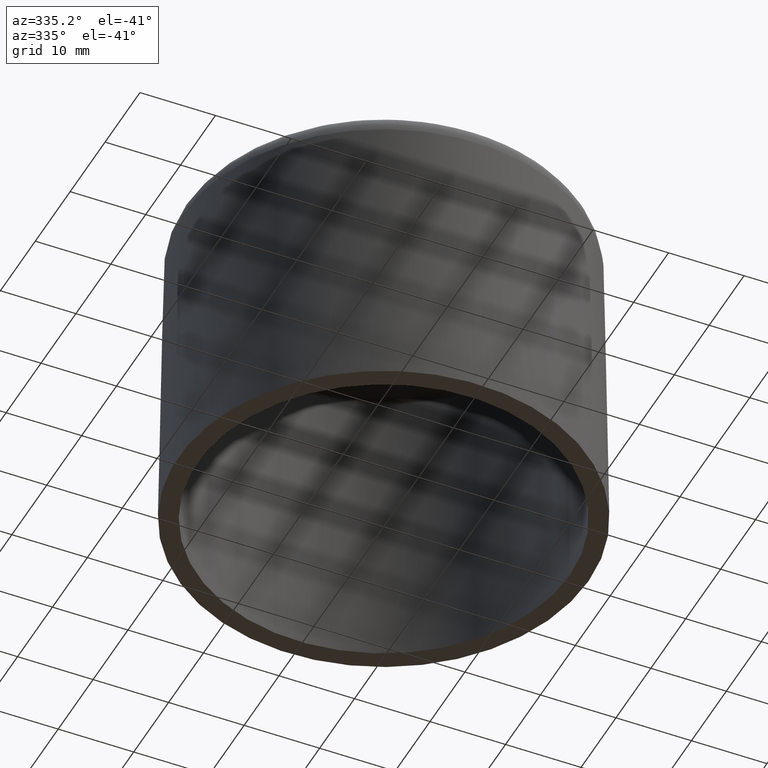
[diagram: clean part render]
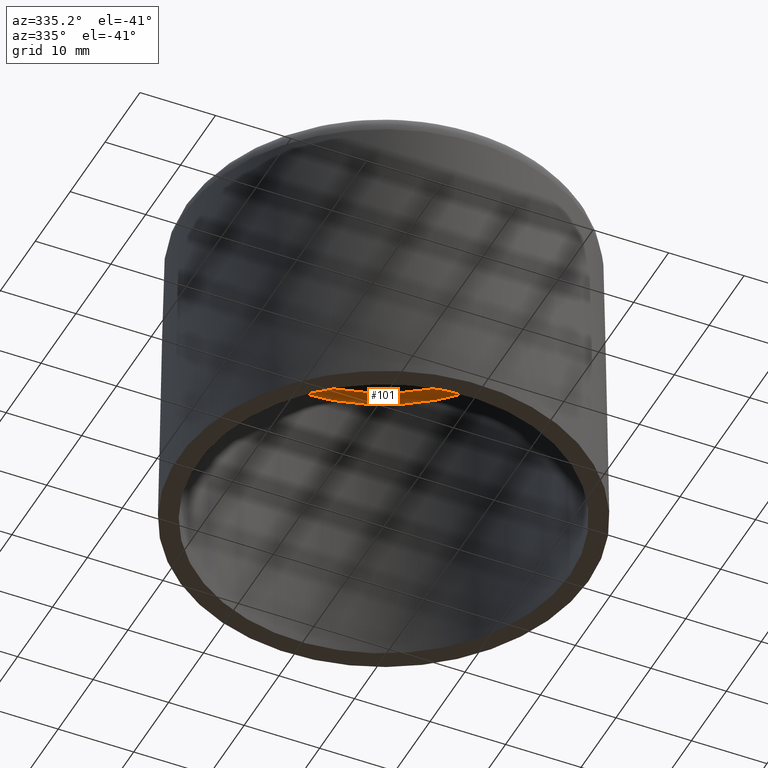
[diagram: same view with one face highlighted and labeled with its STEP entity id]
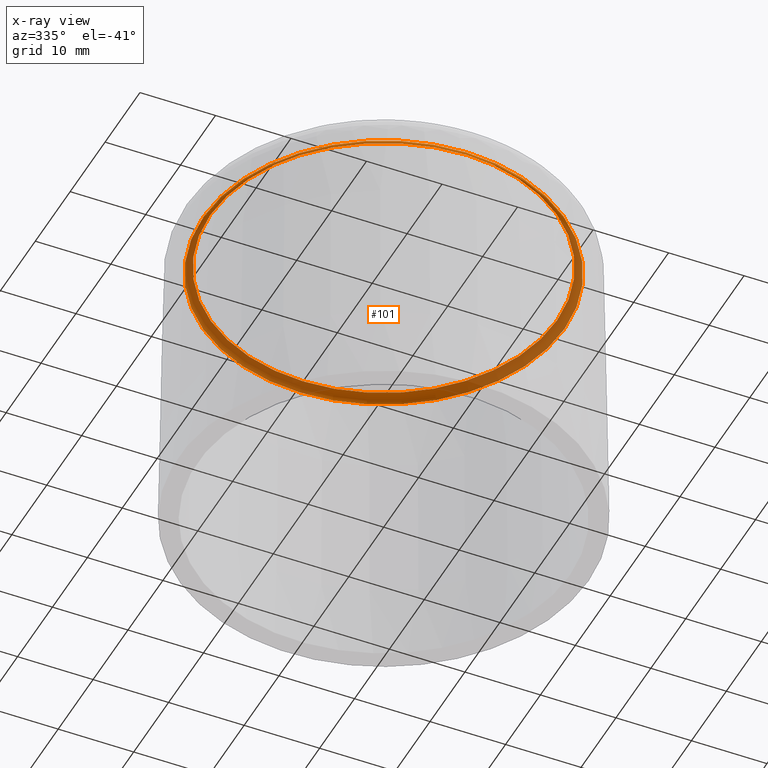
[diagram: x-ray of the same camera — body ghosted, the highlighted face saturated]
A machine part, auxiliary view. The second image highlights one B-rep face of the part: STEP entity #101.
The next image is the same camera in x-ray: the body ghosted, the highlighted face saturated — about 64% of this face is hidden behind the body in this view.
In plain terms, the highlighted toroidal blend (fillet) surface has major radius 22.9682 mm and minor (blend) radius 1 mm.
Its self-contained STEP definition (entity closure, byte-faithful):
#101 = ADVANCED_FACE( '', ( #220, #221 ), #222, .F. );
#220 = FACE_OUTER_BOUND( '', #396, .T. );
#221 = FACE_OUTER_BOUND( '', #397, .T. );
#222 = TOROIDAL_SURFACE( '', #398, 22.9682014383200, 1.00000000000000 );
#396 = EDGE_LOOP( '', ( #789 ) );
#397 = EDGE_LOOP( '', ( #790 ) );
#398 = AXIS2_PLACEMENT_3D( '', #791, #792, #793 );
#789 = ORIENTED_EDGE( '', *, *, #1266, .F. );
#790 = ORIENTED_EDGE( '', *, *, #1265, .T. );
#791 = CARTESIAN_POINT( '', ( -2.38798238995364E-015, 0.000000000000000, 39.0000000000000 ) );
#792 = DIRECTION( '', ( -6.12303176911189E-017, 0.000000000000000, 1.00000000000000 ) );
#793 = DIRECTION( '', ( 1.00000000000000, 0.000000000000000, 6.12303176911189E-017 ) );
#1265 = EDGE_CURVE( '', #1519, #1519, #1520, .T. );
#1266 = EDGE_CURVE( '', #1521, #1521, #1522, .T. );
#1519 = VERTEX_POINT( '', #2170 );
#1520 = CIRCLE( '', #2171, 22.9682014383200 );
#1521 = VERTEX_POINT( '', #2172 );
#1522 = CIRCLE( '', #2173, 23.9680491334764 );
#2170 = CARTESIAN_POINT( '', ( 22.9682014383200, 0.000000000000000, 40.0000000000000 ) );
#2171 = AXIS2_PLACEMENT_3D( '', #2381, #2382, #2383 );
#2172 = CARTESIAN_POINT( '', ( 23.9680491334764, 0.000000000000000, 39.0174524064373 ) );
#2173 = AXIS2_PLACEMENT_3D( '', #2384, #2385, #2386 );
#2381 = CARTESIAN_POINT( '', ( -2.44921270764475E-015, 0.000000000000000, 40.0000000000000 ) );
#2382 = DIRECTION( '', ( -6.12303176911189E-017, 0.000000000000000, 1.00000000000000 ) );
#2383 = DIRECTION( '', ( 1.00000000000000, 0.000000000000000, 6.12303176911189E-017 ) );
#2384 = CARTESIAN_POINT( '', ( -2.38905100634427E-015, 0.000000000000000, 39.0174524064373 ) );
#2385 = DIRECTION( '', ( -6.12303176911189E-017, 0.000000000000000, 1.00000000000000 ) );
#2386 = DIRECTION( '', ( 1.00000000000000, 0.000000000000000, 6.12303176911189E-017 ) );